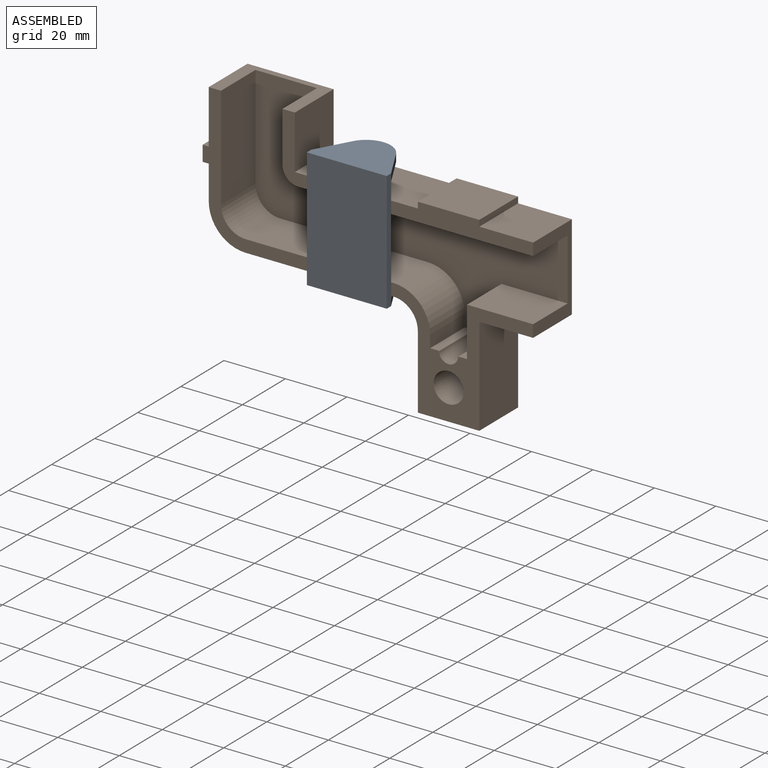
[diagram: assembled view]
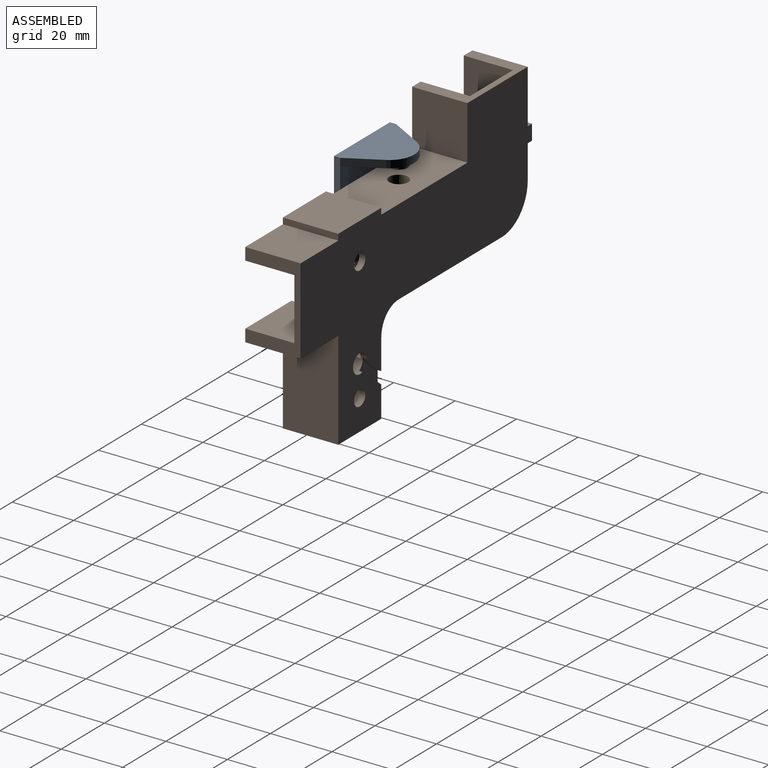
[diagram: assembled view, second angle]
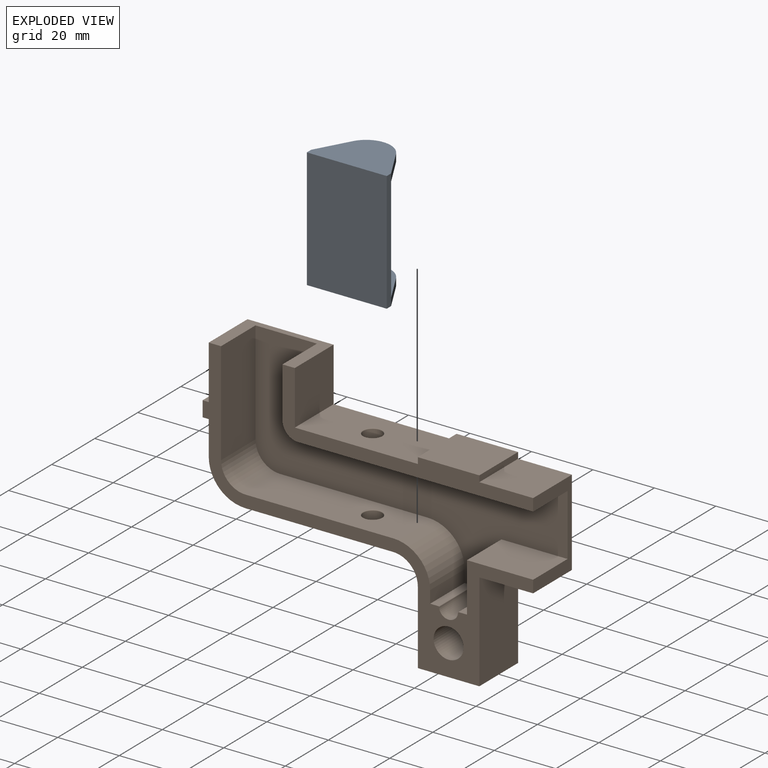
[diagram: exploded view]
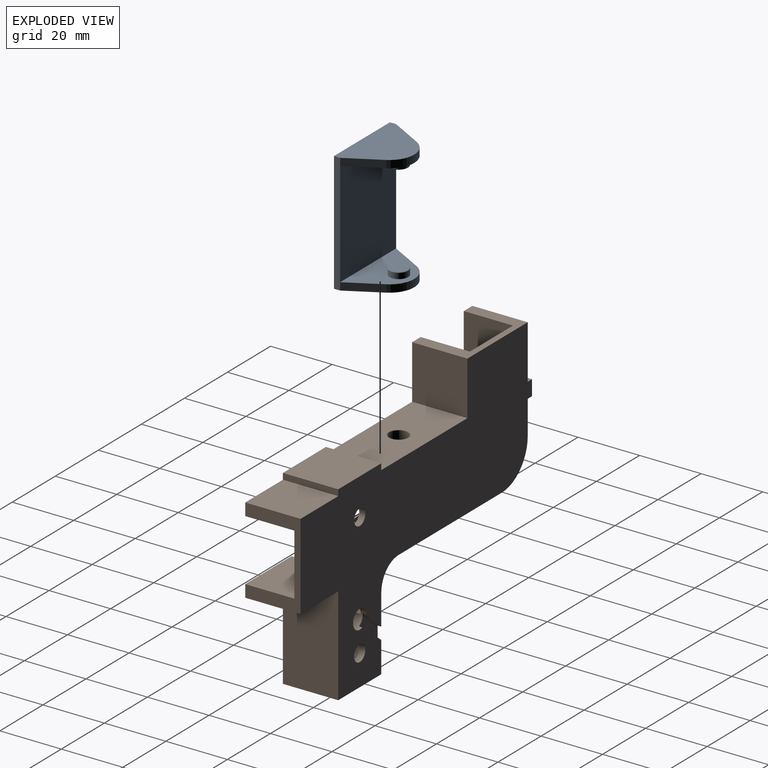
[diagram: exploded view, second angle]
ASSEMBLY  parts=2 mates=2
PART A: 20 faces, bbox 26x17x39 mm
  f0: plane 26x17mm, normal (0,0,-1), area 310.5mm2, adj f4,f5,f6,f14,f15,f17
  f1: plane 26x15mm, normal (0,0,1), area 230.3mm2, adj f7,f8,f14,f15,f17
  f2: plane 26x15mm, normal (0,0,-1), area 230.3mm2, adj f7,f10,f12,f13,f16
  f3: plane 26x17mm, normal (0,0,1), area 310.5mm2, adj f4,f5,f6,f12,f13,f16
  f4: plane 39x2mm, normal (1,0,0), area 78mm2, adj f0,f3,f6,f7,f13,f14
  f5: plane 39x2mm, normal (-1,0,0), area 78mm2, adj f0,f3,f6,f7,f16,f17
  f6: plane 39x26mm, normal (0,1,0), area 1014mm2, adj f0,f3,f4,f5
  f7: plane 34.1x26mm, normal (0,-1,0), area 886.6mm2, adj f1,f2,f4,f5
  f8: cylinder r=3mm len=6mm, axis (0,0,-1), area 33.9mm2, adj f1,f19
  f9: plane 5.6x5.6mm, normal (0,0,1), area 24.6mm2, adj f19
  f10: cylinder r=3mm len=6mm, axis (0,0,1), area 33.9mm2, adj f2,f18
  f11: plane 5.6x5.6mm, normal (0,0,-1), area 24.6mm2, adj f18
  f12: cylinder r=8mm len=14.01mm, axis (0,0,1), area 41.8mm2, adj f2,f3,f13,f16
  f13: plane 10.87x6mm, normal (0.88,-0.48,0), area 30.4mm2, adj f2,f3,f4,f12
  f14: plane 10.87x6mm, normal (0.88,-0.48,0), area 30.4mm2, adj f0,f1,f4,f15
  f15: cylinder r=8mm len=14.01mm, axis (0,0,1), area 41.8mm2, adj f0,f1,f14,f17
  f16: plane 10.87x6mm, normal (-0.88,-0.48,0), area 30.4mm2, adj f2,f3,f5,f12
  f17: plane 10.87x6mm, normal (-0.88,-0.48,0), area 30.4mm2, adj f0,f1,f5,f15
  f18: torus R=2.8mm, axis (0,0,-1), area 5.8mm2, adj f10,f11
  f19: torus R=2.8mm, axis (0,0,1), area 5.8mm2, adj f8,f9
PART B: 65 faces, bbox 107.5x18x77.5 mm
  f0: plane 24x18mm, normal (-1,0,0), area 426.4mm2, adj f4,f15,f19,f37,f50,f53,f54,f55
  f1: cylinder r=3.1mm len=18mm, axis (0,-1,0), area 181mm2, adj f4,f19,f44,f45,f46,f47,f48,f57
  f2: plane 28x18mm, normal (0,0,1), area 184mm2, adj f4,f10,f11,f18,f19,f21,f26,f33
  f3: plane 28x18mm, normal (1,0,0), area 184mm2, adj f4,f5,f17,f18,f19,f21,f31,f32
  f4: plane 107.5x77.5mm, normal (0,-1,0), area 921.9mm2, adj f0,f1,f2,f3,f11,f12,f13,f14
  f5: plane 18x17.5mm, normal (0,0,1), area 315mm2, adj f3,f6,f18,f19
  f6: plane 18x2mm, normal (1,0,0), area 36mm2, adj f5,f7,f18,f19
  f7: plane 20x18mm, normal (0,0,1), area 360mm2, adj f6,f8,f18,f19
  f8: plane 18x2mm, normal (-1,0,0), area 36mm2, adj f7,f9,f18,f19
  f9: plane 40x18mm, normal (0,0,1), area 686.8mm2, adj f8,f10,f18,f19,f62
  f10: plane 18x17.5mm, normal (1,0,0), area 315mm2, adj f2,f9,f18,f19
  f11: plane 18x17.5mm, normal (-1,0,0), area 315mm2, adj f2,f4,f12,f19
  f12: plane 18x2mm, normal (0,0,1), area 36mm2, adj f4,f11,f13,f19
  f13: plane 18x5mm, normal (-1,0,0), area 90mm2, adj f4,f12,f19,f35
  f14: plane 48x18mm, normal (0,0,-1), area 834.8mm2, adj f4,f19,f37,f38,f61
  f15: plane 20x18mm, normal (0,0,-1), area 360mm2, adj f0,f4,f16,f19
  f16: plane 32x18mm, normal (1,0,0), area 576mm2, adj f4,f15,f17,f19
  f17: plane 18x17.5mm, normal (0,0,-1), area 315mm2, adj f3,f4,f16,f19
  f18: plane 81.5x21.5mm, normal (0,-1,0), area 430.6mm2, adj f2,f3,f5,f6,f7,f8,f9,f10
  f19: plane 107.5x77.5mm, normal (0,1,0), area 4014.2mm2, adj f0,f1,f2,f3,f5,f6,f7,f8
  f20: cylinder r=2.6mm len=5.2mm, axis (0,-1,0), area 32.7mm2, adj f19,f21
  f21: plane 101.5x57.5mm, normal (0,-1,0), area 2636.2mm2, adj f2,f3,f20,f25,f26,f27,f28,f29
  f22: cylinder r=2.6mm len=5.2mm, axis (0,-1,0), area 32.7mm2, adj f19,f23
  f23: plane 9.75x9.75mm, normal (0,-1,0), area 53.4mm2, adj f22,f24
  f24: cylinder r=4.88mm len=16mm, axis (0,-1,0), area 490.1mm2, adj f4,f23
  f25: plane 16x2.71mm, normal (0,0,1), area 43.3mm2, adj f4,f21,f30,f58,f59
  f26: plane 33.5x16mm, normal (1,0,0), area 536mm2, adj f2,f4,f21,f36
  f27: plane 48x16mm, normal (0,0,1), area 734.8mm2, adj f4,f21,f36,f39,f63
  f28: plane 16x4mm, normal (1,0,0), area 64mm2, adj f4,f21,f29,f39
  f29: plane 16x2.71mm, normal (0,0,1), area 43.3mm2, adj f4,f21,f28,f57,f58
  f30: plane 16x16mm, normal (-1,0,0), area 256mm2, adj f4,f21,f25,f31
  f31: plane 21.5x16mm, normal (0,0,1), area 344mm2, adj f3,f4,f21,f30
  f32: plane 76.5x16mm, normal (0,0,-1), area 1190.8mm2, adj f3,f18,f21,f40,f64
  f33: plane 16.5x16mm, normal (-1,0,0), area 264mm2, adj f2,f18,f21,f40
  f34: plane 18x11mm, normal (-1,0,0), area 198mm2, adj f4,f19,f35,f38
  f35: plane 18x2mm, normal (0,0,-1), area 36mm2, adj f4,f13,f19,f34
  f36: cylinder r=8mm len=16mm, axis (0,1,0), area 201.1mm2, adj f4,f21,f26,f27
  f37: cylinder r=8mm len=18mm, axis (0,1,0), area 226.2mm2, adj f0,f4,f14,f19
  f38: cylinder r=12mm len=18mm, axis (0,1,0), area 339.3mm2, adj f4,f14,f19,f34
  f39: cylinder r=12mm len=16mm, axis (0,1,0), area 301.6mm2, adj f4,f21,f27,f28
  f40: cylinder r=5mm len=16mm, axis (0,-1,0), area 125.7mm2, adj f18,f21,f32,f33
  f41: plane 8.65x6.92mm, normal (-0.62,0,0.78), area 10mm2, adj f19,f45,f50,f51
  f42: plane 4.96x3.97mm, normal (0.62,0,-0.78), area 5.7mm2, adj f19,f44,f52,f53
  f43: plane 9.07x8.24mm, normal (0,1,0), area 24.5mm2, adj f46,f49,f51,f52,f56
  f44: cylinder r=5mm len=2.64mm, axis (0,-1,0), area 2.9mm2, adj f1,f19,f42,f49
  f45: cylinder r=0.2mm len=0.9mm, axis (0,-1,0), area 0.2mm2, adj f1,f19,f41,f48
  f46: torus R=3.3mm, axis (0,1,0), area 0.9mm2, adj f1,f43,f47,f48
  f47: bspline ~1.25x0.4mm, area 0.2mm2, adj f1,f46,f49
  f48: bspline ~0.5x0.48mm, area 0.1mm2, adj f1,f45,f46,f51
  f49: torus R=5.2mm, axis (0,1,0), area 0.8mm2, adj f43,f44,f47,f52
  f50: cylinder r=0.2mm len=0.9mm, axis (0,1,0), area 0.2mm2, adj f0,f19,f41,f54
  f51: cylinder r=0.2mm len=8.78mm, axis (-0.78,0,-0.62), area 3.4mm2, adj f41,f43,f48,f54
  f52: cylinder r=0.2mm len=5.34mm, axis (0.78,0,0.62), area 2mm2, adj f42,f43,f49,f55
  f53: cylinder r=0.2mm len=0.9mm, axis (0,-1,0), area 0.4mm2, adj f0,f19,f42,f55
  f54: bspline ~0.6x0.4mm, area 0.1mm2, adj f0,f50,f51,f56
  f55: bspline ~0.54x0.4mm, area 0.2mm2, adj f0,f52,f53,f56
  f56: cylinder r=0.2mm len=3.33mm, axis (0,0,-1), area 1mm2, adj f0,f43,f54,f55
  f57: cylinder r=0.2mm len=16.2mm, axis (0,-1,0), area 4.9mm2, adj f1,f4,f29,f58
  f58: torus R=3.3mm, axis (0,-1,0), area 3.2mm2, adj f1,f21,f25,f29,f57,f59
  f59: cylinder r=0.2mm len=16.2mm, axis (0,-1,0), area 4.9mm2, adj f1,f4,f25,f58
  f60: cylinder r=3.05mm len=6.1mm, axis (0,0,-1), area 69mm2, adj f62,f64
  f61: cylinder r=3.05mm len=6.1mm, axis (0,0,-1), area 72.8mm2, adj f14,f63
  f62: torus R=3.25mm, axis (0,0,-1), area 6.2mm2, adj f9,f60
  f63: torus R=3.25mm, axis (0,0,1), area 6.2mm2, adj f27,f61
  f64: torus R=3.25mm, axis (0,0,1), area 6.2mm2, adj f32,f60
PLACE A rot(axis=(1,0,0),180deg) t=(-44.99,-35.73,52.92)mm
PLACE B t=(-13.99,-14.73,33.87)mm
MATE planar A.f2 <-> B.f14  axis (0,0,1) through (-51.99,-22.87,35.87)mm
MATE cylindrical B.f62 <-> A.f10  axis (0,0,-1) through (-44.99,-23.73,35.87)mm
